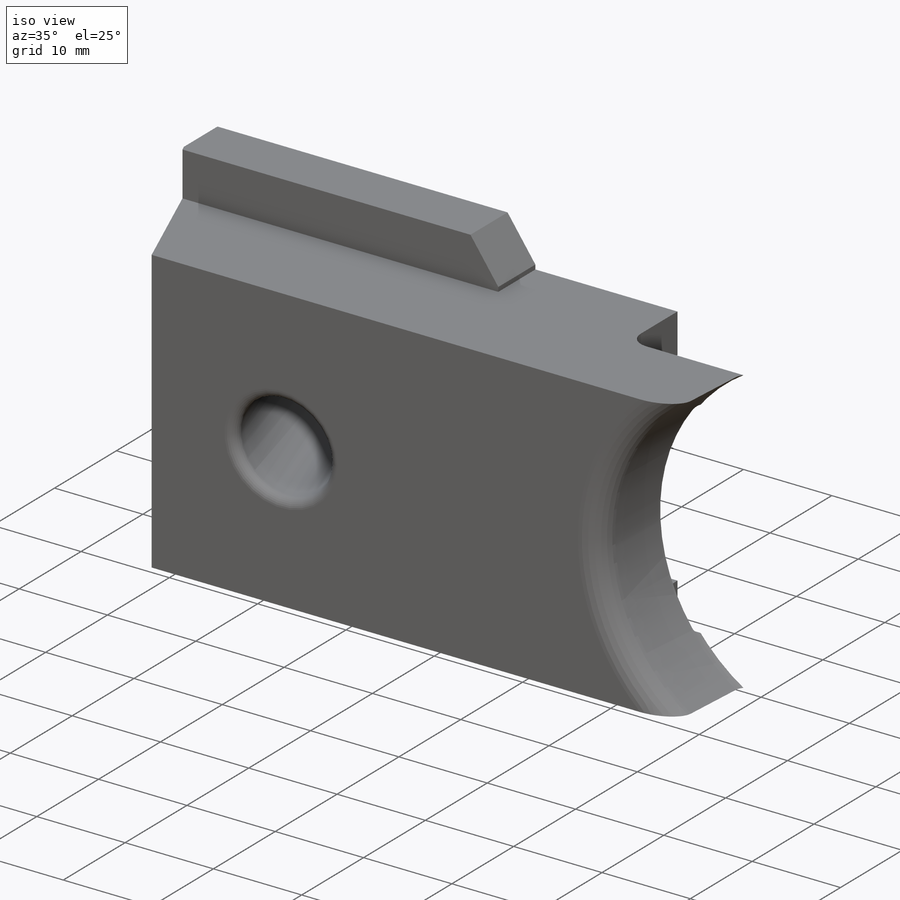
[diagram: iso view]
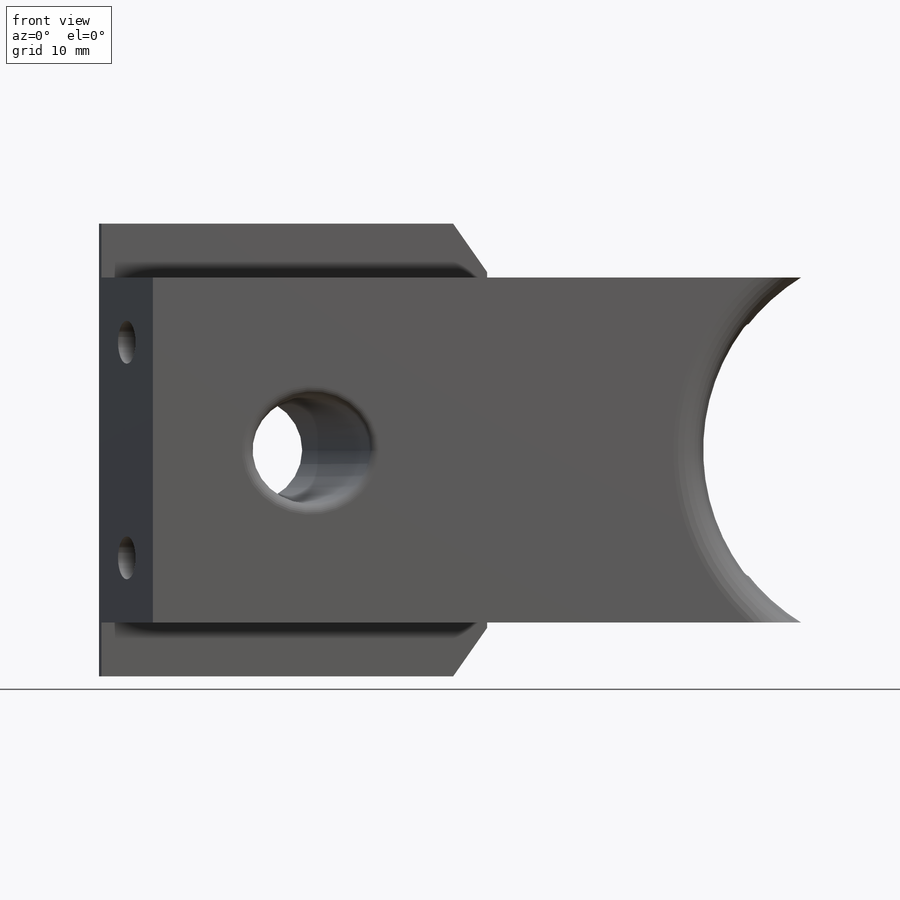
[diagram: front view]
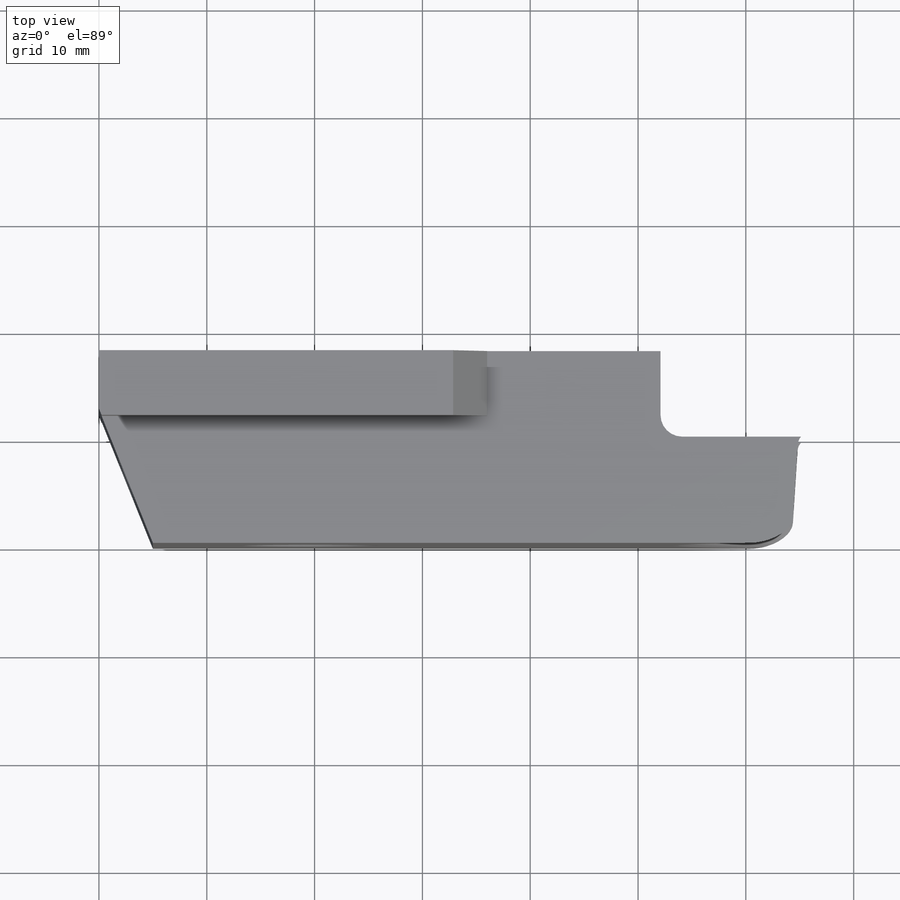
[diagram: top view]
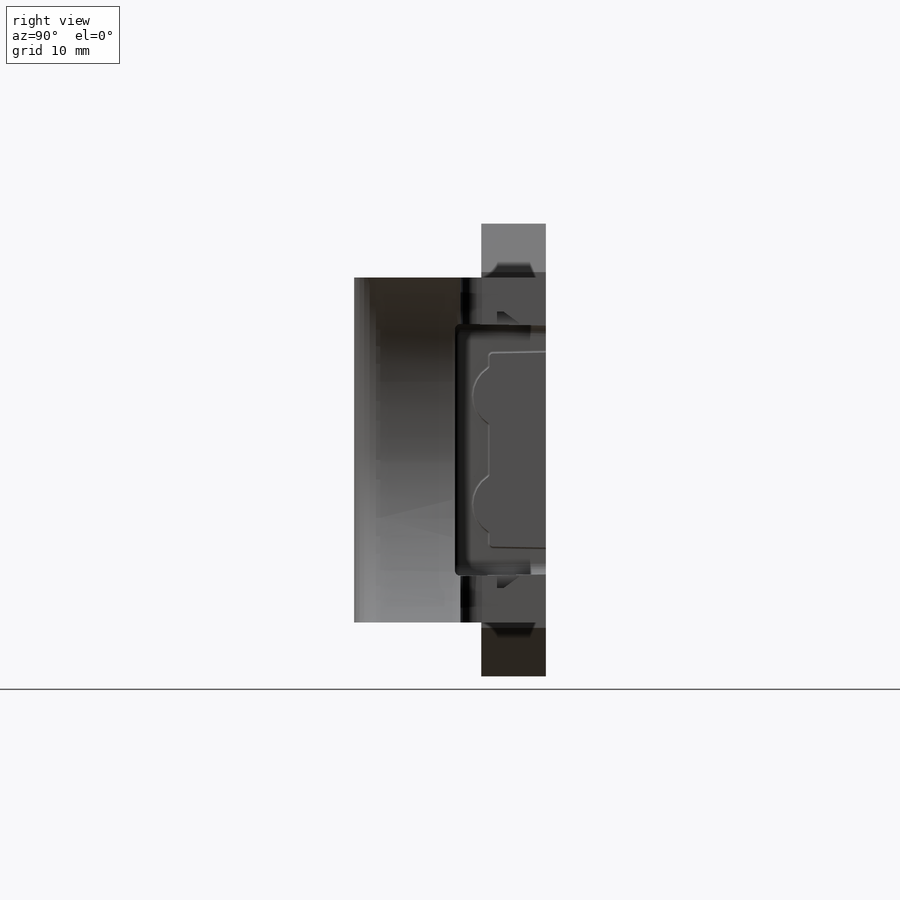
[diagram: right view]
SOLIDWORKS PART (.sldprt)
format: sldprt  version: not decoded by parser v0  size: 1,539,072 bytes
history: native  units: mm
features: sketch x9, extrude x4, cut_extrude x2, hole x2, material x1, cut_revolve x1, fillet x1, chamfer x1 (+11 scaffold rows collapsed)
feature tree (32):
  scaffold x11  (default folders/planes/origin — collapsed)
  material  "Материал <не указан>"
  sketch  "Sketch1"  dims[D1=130.0mm]
  extrude  "Extrude1"  [1 undecoded]
  extrude  "ПОАНСОН ДОЛЕН<1>@ДЕЛЕНЕ1"  [1 undecoded]
  extrude  "ФОРМА ДОЛНА<1>@ДЕЛЕНЕ1"  [1 undecoded]
  sketch  "Sketch3"  dims[D1=6.0mm D2=5.0mm]
  extrude  "Extrude2"  Depth=36mm
  sketch  "Sketch4"  dims[c1.D1=110.0mm c1.D2=17.7885mm c2.D2=20.0deg c2.D3=5.0mm]
  cut_revolve  "Cut-Revolve1"  Angle=360deg
  fillet  "Fillet1"  Radius=1mm
  sketch  "Sketch5"  dims[c1.D1=~12.112287mm c2.D1=22.0deg c2.D2=5.0mm]
  cut_extrude  "Extrude3"  Depth=50mm
  chamfer  "Chamfer1"  Distance=4.5mm Angle=35deg
  hole  "Ø4.0 (4) Diameter Hole1"  [1 undecoded]
  sketch  "Sketch7"  dims[D1=10.0mm D2=6.0mm]
  sketch  "Sketch6"  dims[hole-wizard template sketch: 46 standard entries collapsed; hole parameters kept: c15.Диаметр отверстия=4.0mm c15.Глубина отверстия=42.0mm c15.D3=~14.816244mm c15.Угол заточки сверла=118.0deg]
  hole  "Ø4.0 (4) Diameter Hole2"  [1 undecoded]
  sketch  "Sketch9"  dims[D1=40.0mm]
  sketch  "Sketch8"  dims[hole-wizard template sketch: 46 standard entries collapsed; hole parameters kept: c15.Диаметр отверстия=4.0mm c15.Глубина отверстия=25.999mm c15.D3=~14.816244mm c15.Угол заточки сверла=118.0deg]
  sketch  "Sketch10"  dims[D1=8.0mm]
  cut_extrude  "Extrude5"  Depth=2.5mm
decode coverage: 15 of 20 modeling features carry decoded parameters
note: ~ marks probable driven/reference dimensions
note: 5 parameter values undecoded
summary: no parameter record found for 5 features
note: suppression state not decoded; provenance and decode notes live in map.json
